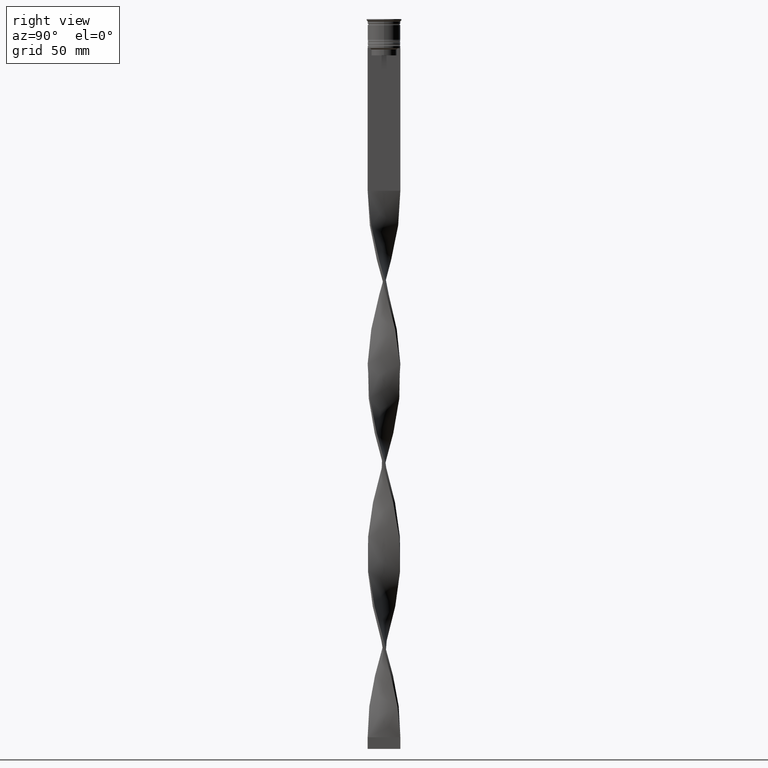
[diagram: clean part render]
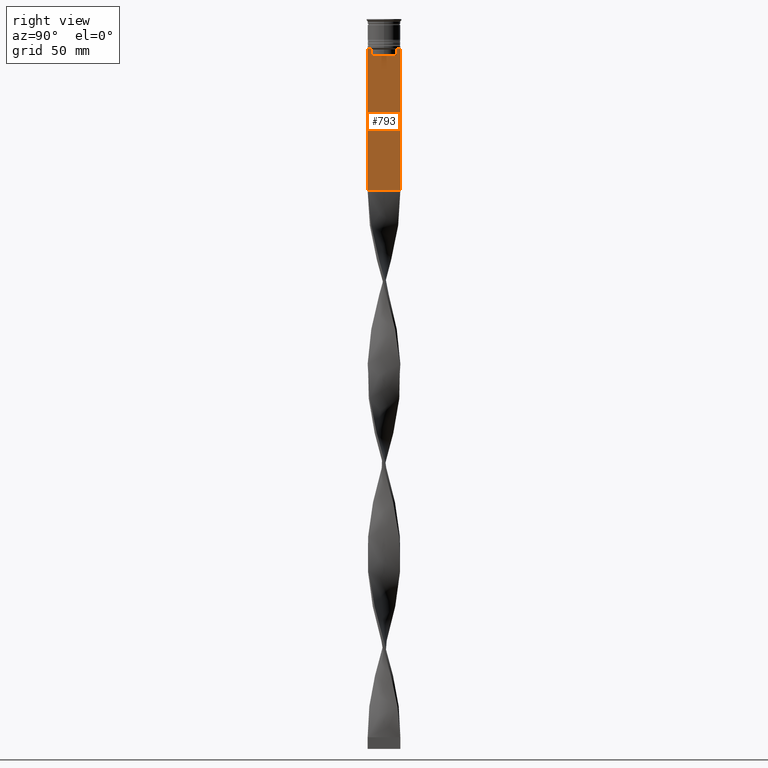
[diagram: same view with one face highlighted and labeled with its STEP entity id]
A machine part, right view. The second image highlights one B-rep face of the part: STEP entity #793.
In plain terms, the highlighted planar face has unit normal (-1, 0, 0).
Its self-contained STEP definition (entity closure, byte-faithful):
#1 = VERTEX_POINT ( 'NONE', #1408 ) ;
#35 = AXIS2_PLACEMENT_3D ( 'NONE', #1988, #1973, #685 ) ;
#70 = VERTEX_POINT ( 'NONE', #1063 ) ;
#183 = LINE ( 'NONE', #3703, #1236 ) ;
#301 = CARTESIAN_POINT ( 'NONE',  ( 0.5000000000000000000, 5.711478846560141598, -12.66669470477064685 ) ) ;
#302 = EDGE_CURVE ( 'NONE', #1125, #3887, #597, .T. ) ;
#340 = EDGE_CURVE ( 'NONE', #1125, #478, #1557, .T. ) ;
#383 = CARTESIAN_POINT ( 'NONE',  ( 0.5000000000000000000, -5.376802023508029826, -13.00000000000000178 ) ) ;
#390 = ORIENTED_EDGE ( 'NONE', *, *, #2993, .T. ) ;
#478 = VERTEX_POINT ( 'NONE', #3784 ) ;
#505 = LINE ( 'NONE', #1836, #894 ) ;
#557 = VECTOR ( 'NONE', #1133, 1000.000000000000000 ) ;
#597 = LINE ( 'NONE', #3718, #2686 ) ;
#605 = VERTEX_POINT ( 'NONE', #1497 ) ;
#629 = VECTOR ( 'NONE', #1392, 1000.000000000000000 ) ;
#640 = CARTESIAN_POINT ( 'NONE',  ( 0.5000000000000000000, -5.878775382679629402, -12.50000000000000000 ) ) ;
#664 = EDGE_CURVE ( 'NONE', #1, #1107, #3751, .T. ) ;
#685 = DIRECTION ( 'NONE',  ( 0.000000000000000000, 0.000000000000000000, 1.000000000000000000 ) ) ;
#699 = VECTOR ( 'NONE', #3005, 1000.000000000000000 ) ;
#712 = CARTESIAN_POINT ( 'NONE',  ( 0.5000000000000000000, 6.881860213634102053, -12.50000000000000000 ) ) ;
#793 = ADVANCED_FACE ( 'NONE', ( #1659 ), #1017, .F. ) ;
#865 = VERTEX_POINT ( 'NONE', #1979 ) ;
#887 = DIRECTION ( 'NONE',  ( 0.000000000000000000, 0.000000000000000000, -1.000000000000000000 ) ) ;
#894 = VECTOR ( 'NONE', #887, 1000.000000000000000 ) ;
#908 = ORIENTED_EDGE ( 'NONE', *, *, #1580, .T. ) ;
#924 = LINE ( 'NONE', #1847, #2074 ) ;
#1017 = PLANE ( 'NONE',  #35 ) ;
#1049 = CARTESIAN_POINT ( 'NONE',  ( 0.5000000000000000000, -5.376802023508029826, 0.000000000000000000 ) ) ;
#1063 = CARTESIAN_POINT ( 'NONE',  ( 0.5000000000000000000, -5.376802023508029826, -13.00000000000000178 ) ) ;
#1107 = VERTEX_POINT ( 'NONE', #1859 ) ;
#1125 = VERTEX_POINT ( 'NONE', #2509 ) ;
#1133 = DIRECTION ( 'NONE',  ( 0.000000000000000000, 1.000000000000000000, 0.000000000000000000 ) ) ;
#1236 = VECTOR ( 'NONE', #1518, 1000.000000000000000 ) ;
#1273 = DIRECTION ( 'NONE',  ( 0.000000000000000000, -1.000000000000000000, 0.000000000000000000 ) ) ;
#1276 = DIRECTION ( 'NONE',  ( 0.000000000000000000, -1.000000000000000000, 0.000000000000000000 ) ) ;
#1347 = ORIENTED_EDGE ( 'NONE', *, *, #2276, .T. ) ;
#1358 = CARTESIAN_POINT ( 'NONE',  ( 0.5000000000000000000, 5.376802023508029826, 0.000000000000000000 ) ) ;
#1375 = B_SPLINE_CURVE_WITH_KNOTS ( 'NONE', 3,
 ( #1885, #301, #2854, #3495 ),
 .UNSPECIFIED., .F., .F.,
 ( 4, 4 ),
 ( 0.01003009312103698807, 0.01073859663834952557 ),
 .UNSPECIFIED. ) ;
#1392 = DIRECTION ( 'NONE',  ( 0.000000000000000000, -1.000000000000000000, 0.000000000000000000 ) ) ;
#1408 = CARTESIAN_POINT ( 'NONE',  ( 0.5000000000000000000, 5.376802023508029826, -15.50000000000000000 ) ) ;
#1425 = VECTOR ( 'NONE', #3229, 1000.000000000000000 ) ;
#1446 = ORIENTED_EDGE ( 'NONE', *, *, #2127, .T. ) ;
#1497 = CARTESIAN_POINT ( 'NONE',  ( 0.5000000000000000000, -6.999999999999997335, -12.50000000000000000 ) ) ;
#1518 = DIRECTION ( 'NONE',  ( 0.000000000000000000, -1.000000000000000000, 0.000000000000000000 ) ) ;
#1551 = ORIENTED_EDGE ( 'NONE', *, *, #2556, .T. ) ;
#1557 = LINE ( 'NONE', #2841, #1949 ) ;
#1580 = EDGE_CURVE ( 'NONE', #1880, #605, #183, .T. ) ;
#1659 = FACE_OUTER_BOUND ( 'NONE', #3236, .T. ) ;
#1714 = B_SPLINE_CURVE_WITH_KNOTS ( 'NONE', 3,
 ( #383, #2240, #2892, #640 ),
 .UNSPECIFIED., .F., .F.,
 ( 4, 4 ),
 ( 0.02539176325380714666, 0.02610162431828674801 ),
 .UNSPECIFIED. ) ;
#1796 = EDGE_CURVE ( 'NONE', #865, #1880, #2540, .T. ) ;
#1823 = EDGE_CURVE ( 'NONE', #3887, #2829, #924, .T. ) ;
#1836 = CARTESIAN_POINT ( 'NONE',  ( 0.5000000000000000000, -6.999999999999997335, 1.535668847618198329 ) ) ;
#1847 = CARTESIAN_POINT ( 'NONE',  ( 0.5000000000000000000, -6.999999999999997335, -12.50000000000000000 ) ) ;
#1859 = CARTESIAN_POINT ( 'NONE',  ( 0.5000000000000000000, -5.376802023508029826, -15.50000000000000000 ) ) ;
#1880 = VERTEX_POINT ( 'NONE', #3188 ) ;
#1885 = CARTESIAN_POINT ( 'NONE',  ( 0.5000000000000000000, 5.878775382679629402, -12.50000000000000000 ) ) ;
#1949 = VECTOR ( 'NONE', #3811, 1000.000000000000000 ) ;
#1955 = LINE ( 'NONE', #1358, #1425 ) ;
#1973 = DIRECTION ( 'NONE',  ( -1.000000000000000000, 0.000000000000000000, 0.000000000000000000 ) ) ;
#1979 = CARTESIAN_POINT ( 'NONE',  ( 0.5000000000000000000, -5.878775382679629402, -12.50000000000000000 ) ) ;
#1982 = ORIENTED_EDGE ( 'NONE', *, *, #3173, .T. ) ;
#1988 = CARTESIAN_POINT ( 'NONE',  ( 0.5000000000000000000, -6.999999999999997335, 1.535668847618198329 ) ) ;
#2074 = VECTOR ( 'NONE', #1276, 1000.000000000000000 ) ;
#2127 = EDGE_CURVE ( 'NONE', #3012, #1, #1955, .T. ) ;
#2218 = ORIENTED_EDGE ( 'NONE', *, *, #1796, .T. ) ;
#2240 = CARTESIAN_POINT ( 'NONE',  ( 0.5000000000000000000, -5.544156999454441959, -12.83336396790503642 ) ) ;
#2276 = EDGE_CURVE ( 'NONE', #605, #2729, #505, .T. ) ;
#2280 = ORIENTED_EDGE ( 'NONE', *, *, #302, .T. ) ;
#2377 = CARTESIAN_POINT ( 'NONE',  ( 0.5000000000000000000, 5.376802023508029826, -13.00000000000000178 ) ) ;
#2385 = EDGE_CURVE ( 'NONE', #70, #865, #1714, .T. ) ;
#2448 = CARTESIAN_POINT ( 'NONE',  ( 0.5000000000000000000, 5.878775382679629402, -12.50000000000000000 ) ) ;
#2509 = CARTESIAN_POINT ( 'NONE',  ( 0.5000000000000000000, 7.000000000000002665, -12.50000000000000000 ) ) ;
#2540 = LINE ( 'NONE', #3814, #3880 ) ;
#2556 = EDGE_CURVE ( 'NONE', #2829, #3012, #1375, .T. ) ;
#2686 = VECTOR ( 'NONE', #1273, 1000.000000000000000 ) ;
#2729 = VERTEX_POINT ( 'NONE', #3940 ) ;
#2776 = ORIENTED_EDGE ( 'NONE', *, *, #340, .F. ) ;
#2819 = ORIENTED_EDGE ( 'NONE', *, *, #1823, .T. ) ;
#2829 = VERTEX_POINT ( 'NONE', #2448 ) ;
#2841 = CARTESIAN_POINT ( 'NONE',  ( 0.5000000000000000000, 7.000000000000002665, 1.535668847618198329 ) ) ;
#2854 = CARTESIAN_POINT ( 'NONE',  ( 0.5000000000000000000, 5.544156989057553275, -12.83336397825725861 ) ) ;
#2892 = CARTESIAN_POINT ( 'NONE',  ( 0.5000000000000000000, -5.711478856069293286, -12.66669469529570335 ) ) ;
#2993 = EDGE_CURVE ( 'NONE', #1107, #70, #3900, .T. ) ;
#3005 = DIRECTION ( 'NONE',  ( -0.000000000000000000, -0.000000000000000000, 1.000000000000000000 ) ) ;
#3012 = VERTEX_POINT ( 'NONE', #2377 ) ;
#3109 = ORIENTED_EDGE ( 'NONE', *, *, #664, .T. ) ;
#3173 = EDGE_CURVE ( 'NONE', #2729, #478, #3972, .T. ) ;
#3188 = CARTESIAN_POINT ( 'NONE',  ( 0.5000000000000000000, -6.881860213634102053, -12.50000000000000000 ) ) ;
#3229 = DIRECTION ( 'NONE',  ( 0.000000000000000000, 0.000000000000000000, -1.000000000000000000 ) ) ;
#3236 = EDGE_LOOP ( 'NONE', ( #2819, #1551, #1446, #3109, #390, #3886, #2218, #908, #1347, #1982, #2776, #2280 ) ) ;
#3352 = CARTESIAN_POINT ( 'NONE',  ( 0.5000000000000000000, -6.999999999999997335, -73.50000000000001421 ) ) ;
#3479 = DIRECTION ( 'NONE',  ( 0.000000000000000000, -1.000000000000000000, 0.000000000000000000 ) ) ;
#3495 = CARTESIAN_POINT ( 'NONE',  ( 0.5000000000000000000, 5.376802023508029826, -13.00000000000000178 ) ) ;
#3592 = CARTESIAN_POINT ( 'NONE',  ( 0.5000000000000000000, 5.400000000000003908, -15.50000000000000000 ) ) ;
#3703 = CARTESIAN_POINT ( 'NONE',  ( 0.5000000000000000000, -6.999999999999997335, -12.50000000000000000 ) ) ;
#3718 = CARTESIAN_POINT ( 'NONE',  ( 0.5000000000000000000, -6.999999999999997335, -12.50000000000000000 ) ) ;
#3751 = LINE ( 'NONE', #3592, #629 ) ;
#3784 = CARTESIAN_POINT ( 'NONE',  ( 0.5000000000000000000, 7.000000000000002665, -73.50000000000001421 ) ) ;
#3811 = DIRECTION ( 'NONE',  ( 0.000000000000000000, 0.000000000000000000, -1.000000000000000000 ) ) ;
#3814 = CARTESIAN_POINT ( 'NONE',  ( 0.5000000000000000000, -6.999999999999997335, -12.50000000000000000 ) ) ;
#3880 = VECTOR ( 'NONE', #3479, 1000.000000000000000 ) ;
#3886 = ORIENTED_EDGE ( 'NONE', *, *, #2385, .T. ) ;
#3887 = VERTEX_POINT ( 'NONE', #712 ) ;
#3900 = LINE ( 'NONE', #1049, #699 ) ;
#3940 = CARTESIAN_POINT ( 'NONE',  ( 0.5000000000000000000, -6.999999999999997335, -73.50000000000001421 ) ) ;
#3972 = LINE ( 'NONE', #3352, #557 ) ;